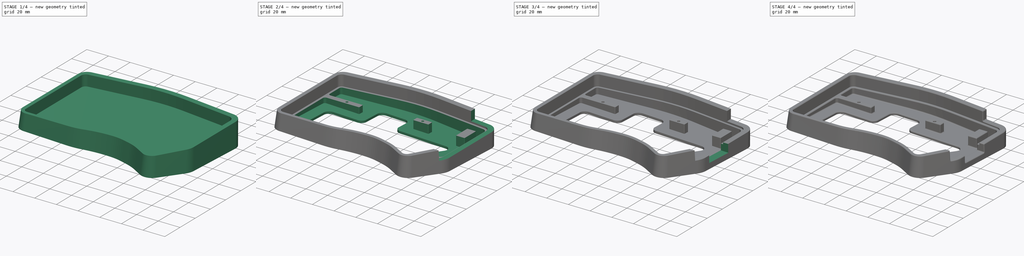
[diagram: build sequence overview — one tinted view per stage of 4, left to right]
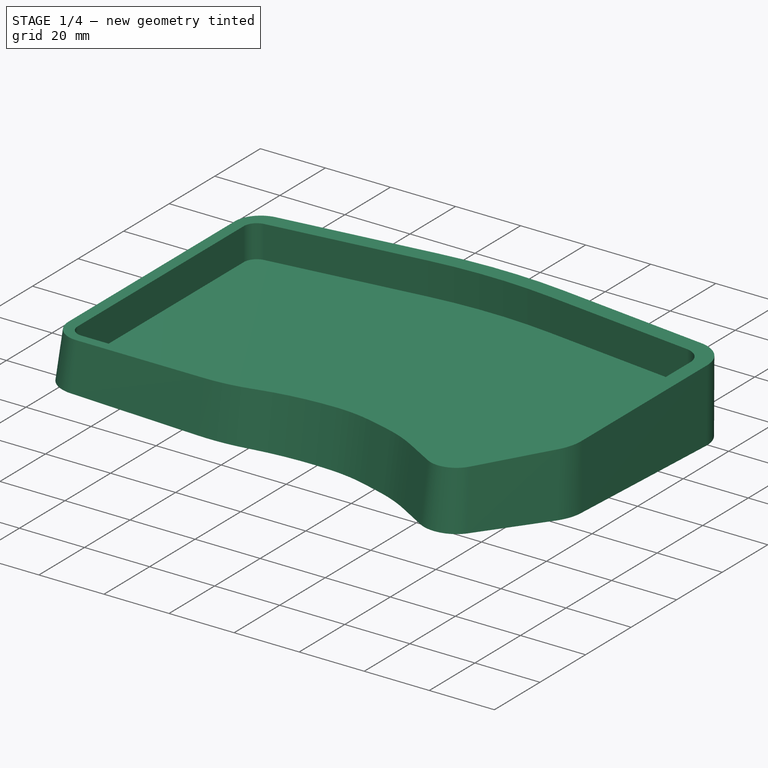
[diagram: stage 1 of 4 — iso view after this stage's code; geometry added in this stage tinted green]
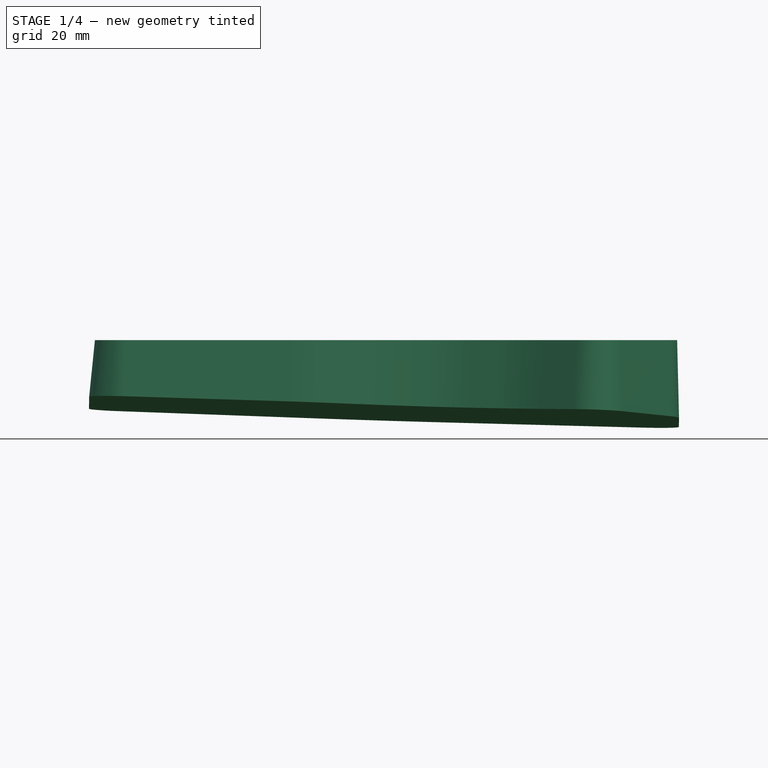
[diagram: stage 1 of 4 — front view after this stage's code; geometry added in this stage tinted green]
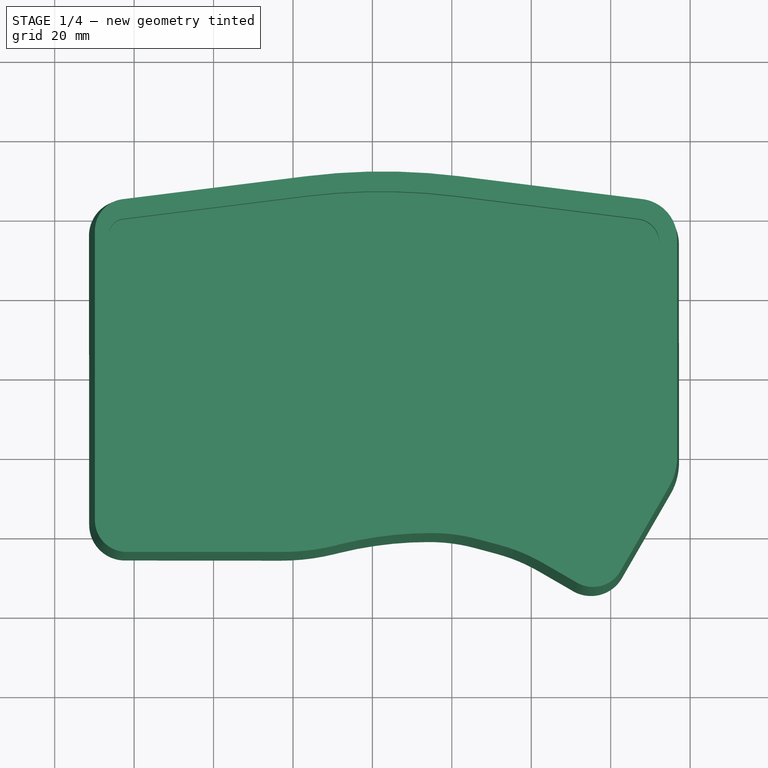
[diagram: stage 1 of 4 — top view after this stage's code; geometry added in this stage tinted green]
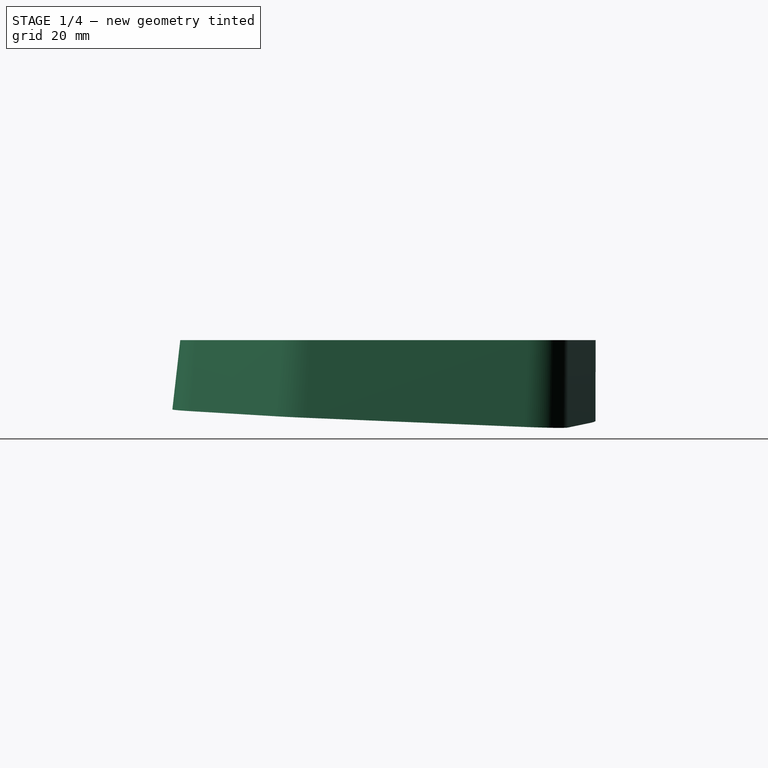
[diagram: stage 1 of 4 — right view after this stage's code; geometry added in this stage tinted green]
FCSTD DOCUMENT  (FreeCAD 0.20R)
Label: case
License: All rights reserved
LicenseURL: http://en.wikipedia.org/wiki/All_rights_reserved
objects: Sketcher::SketchObject×8, PartDesign::Pocket×5, PartDesign::Fillet×2, PartDesign::AdditiveLoft×1, PartDesign::Hole×1, PartDesign::Chamfer×1, PartDesign::Body×1
note: 29 computed .brp shape members not serialized (recipe doc carries the construction recipe); baked Part::Feature solids carry a one-line shape summary decoded from their .brp

FEATURE [Sketcher::SketchObject] Sketch
  AttachmentOffset = pos=(0,0,0) rot=(0.8,-0.6,0;-0.05236rad)
  FullyConstrained = false
  MapMode = 5
  Placement = pos=(0,0,0) rot=(0.8,-0.6,0;6.23083rad)
  Support = -> [XY_Plane]
  sketch-geometry (20):
    g0: ArcOfCircle CenterX=2.12709 CenterY=-103.909 CenterZ=0 NormalX=0 NormalY=0 NormalZ=1 AngleXU=0 Radius=156 StartAngle=1.44645 EndAngle=1.69514
    g1: LineSegment StartX=21.4755 StartY=50.8869 StartZ=0 EndX=67.5895 EndY=45.1229 EndZ=0
    g2: ArcOfCircle CenterX=66.2252 CenterY=34.2079 CenterZ=0 NormalX=0 NormalY=0 NormalZ=1 AngleXU=0 Radius=11 StartAngle=0 EndAngle=1.44645
    g3: LineSegment StartX=77.2252 StartY=-20.8112 StartZ=0 EndX=77.2252 EndY=34.2079 EndZ=0
    g4: ArcOfCircle CenterX=61.2252 CenterY=-20.8112 CenterZ=0 NormalX=0 NormalY=0 NormalZ=1 AngleXU=0 Radius=16 StartAngle=5.75959 EndAngle=6.28319
    g5: LineSegment StartX=75.0816 StartY=-28.8112 StartZ=0 EndX=62.824 EndY=-50.0419 EndZ=0
    g6: ArcOfCircle CenterX=55.0298 CenterY=-45.5419 CenterZ=0 NormalX=0 NormalY=0 NormalZ=1 AngleXU=0 Radius=9 StartAngle=4.18879 EndAngle=5.75959
    g7: LineSegment StartX=50.5298 StartY=-53.3361 StartZ=0 EndX=41.8724 EndY=-48.3378 EndZ=0
    g8: ArcOfCircle CenterX=19.8724 CenterY=-86.4429 CenterZ=0 NormalX=0 NormalY=0 NormalZ=1 AngleXU=0 Radius=44 StartAngle=1.0472 EndAngle=1.309
    g9: ArcOfCircle CenterX=14.3883 CenterY=-84.9734 CenterZ=0 NormalX=0 NormalY=0 NormalZ=1 AngleXU=0 Radius=44 StartAngle=1.309 EndAngle=1.5708
    g10: LineSegment StartX=25.7764 StartY=-42.4727 StartZ=0 EndX=31.2604 EndY=-43.9422 EndZ=0
    g11: ArcOfCircle CenterX=14.3393 CenterY=-134.973 CenterZ=0 NormalX=0 NormalY=0 NormalZ=1 AngleXU=0 Radius=94 StartAngle=1.5708 EndAngle=1.81384
    g12: ArcOfCircle CenterX=-23.1357 CenterY=10.2768 CenterZ=0 NormalX=0 NormalY=0 NormalZ=1 AngleXU=0 Radius=56 StartAngle=4.71239 EndAngle=4.95543
    g13: LineSegment StartX=-9.65903 StartY=-44.0774 StartZ=0 EndX=-8.28228 EndY=-43.736 EndZ=0
    g14: LineSegment StartX=-23.1357 StartY=-45.7232 StartZ=0 EndX=-62.3729 EndY=-45.7232 EndZ=0
    g15: ArcOfCircle CenterX=-62.3729 CenterY=-36.7232 CenterZ=0 NormalX=0 NormalY=0 NormalZ=1 AngleXU=0 Radius=9 StartAngle=3.14159 EndAngle=4.71239
    g16: LineSegment StartX=-71.3729 StartY=-36.7232 StartZ=0 EndX=-71.3729 EndY=36.1732 EndZ=0
    g17: ArcOfCircle CenterX=-62.3729 CenterY=36.1732 CenterZ=0 NormalX=0 NormalY=0 NormalZ=1 AngleXU=0 Radius=9 StartAngle=1.69514 EndAngle=3.14159
    g18: LineSegment StartX=-63.4892 StartY=45.1037 StartZ=0 EndX=-17.2213 EndY=50.8869 EndZ=0
    g19: LineSegment StartX=14.3393 StartY=-40.9734 StartZ=0 EndX=14.3883 EndY=-40.9734 EndZ=0
  constraints (20):
    c: Coincident(g15,g16)
    c: Coincident(g16,g17)
    c: Coincident(g17,g18)
    c: Coincident(g14,g15)
    c: Coincident(g12,g14)
    c: Coincident(g0,g18)
    c: Coincident(g12,g13)
    c: Coincident(g11,g13)
    c: Coincident(g11,g19)
    c: Coincident(g9,g19)
    c: Coincident(g0,g1)
    c: Coincident(g9,g10)
    c: Coincident(g8,g10)
    c: Coincident(g7,g8)
    c: Coincident(g6,g7)
    c: Coincident(g5,g6)
    c: Coincident(g1,g2)
    c: Coincident(g4,g5)
    c: Coincident(g3,g4)
    c: Coincident(g2,g3)
FEATURE [Sketcher::SketchObject] Sketch001
  AttachmentOffset = pos=(0.5,1,18) rot=(0,0,1;0rad)
  FullyConstrained = false
  MapMode = 5
  Placement = pos=(0.5,1,18) rot=(0,0,1;0rad)
  Support = -> [XY_Plane]
  sketch-geometry (20):
    g0: LineSegment StartX=21.3515 StartY=49.8946 StartZ=0 EndX=67.4654 EndY=44.1307 EndZ=0
    g1: ArcOfCircle CenterX=66.2252 CenterY=34.2079 CenterZ=0 NormalX=0 NormalY=0 NormalZ=1 AngleXU=0 Radius=10 StartAngle=0 EndAngle=1.44645
    g2: LineSegment StartX=76.2252 StartY=-20.8112 StartZ=0 EndX=76.2252 EndY=34.2079 EndZ=0
    g3: ArcOfCircle CenterX=61.2252 CenterY=-20.8112 CenterZ=0 NormalX=0 NormalY=0 NormalZ=1 AngleXU=0 Radius=15 StartAngle=5.75959 EndAngle=6.28319
    g4: LineSegment StartX=74.2155 StartY=-28.3112 StartZ=0 EndX=61.958 EndY=-49.5419 EndZ=0
    g5: ArcOfCircle CenterX=55.0298 CenterY=-45.5419 CenterZ=0 NormalX=0 NormalY=0 NormalZ=1 AngleXU=0 Radius=8 StartAngle=4.18879 EndAngle=5.75959
    g6: LineSegment StartX=51.0298 StartY=-52.4701 StartZ=0 EndX=42.3724 EndY=-47.4718 EndZ=0
    g7: ArcOfCircle CenterX=19.8724 CenterY=-86.4429 CenterZ=0 NormalX=0 NormalY=0 NormalZ=1 AngleXU=0 Radius=45 StartAngle=1.0472 EndAngle=1.309
    g8: LineSegment StartX=26.0352 StartY=-41.5068 StartZ=0 EndX=31.5193 EndY=-42.9762 EndZ=0
    g9: ArcOfCircle CenterX=14.3883 CenterY=-84.9734 CenterZ=0 NormalX=0 NormalY=0 NormalZ=1 AngleXU=0 Radius=45 StartAngle=1.309 EndAngle=1.5708
    g10: ArcOfCircle CenterX=14.3393 CenterY=-134.973 CenterZ=0 NormalX=0 NormalY=0 NormalZ=1 AngleXU=0 Radius=95 StartAngle=1.5708 EndAngle=1.81384
    g11: ArcOfCircle CenterX=-23.1357 CenterY=10.2768 CenterZ=0 NormalX=0 NormalY=0 NormalZ=1 AngleXU=0 Radius=55 StartAngle=4.71239 EndAngle=4.95543
    g12: LineSegment StartX=-9.89968 StartY=-43.1068 StartZ=0 EndX=-8.52294 EndY=-42.7654 EndZ=0
    g13: LineSegment StartX=-23.1357 StartY=-44.7232 StartZ=0 EndX=-62.3729 EndY=-44.7232 EndZ=0
    g14: ArcOfCircle CenterX=-62.3729 CenterY=-36.7232 CenterZ=0 NormalX=0 NormalY=0 NormalZ=1 AngleXU=0 Radius=8 StartAngle=3.14159 EndAngle=4.71239
    g15: LineSegment StartX=-70.3729 StartY=-36.7232 StartZ=0 EndX=-70.3729 EndY=36.1732 EndZ=0
    g16: ArcOfCircle CenterX=-62.3729 CenterY=36.1732 CenterZ=0 NormalX=0 NormalY=0 NormalZ=1 AngleXU=0 Radius=8 StartAngle=1.69514 EndAngle=3.14159
    g17: LineSegment StartX=-63.3651 StartY=44.1114 StartZ=0 EndX=-17.0973 EndY=49.8946 EndZ=0
    g18: ArcOfCircle CenterX=2.12709 CenterY=-103.909 CenterZ=0 NormalX=0 NormalY=0 NormalZ=1 AngleXU=0 Radius=155 StartAngle=1.44645 EndAngle=1.69514
    g19: LineSegment StartX=14.3393 StartY=-39.9734 StartZ=0 EndX=14.3883 EndY=-39.9734 EndZ=0
  constraints (20):
    c: Coincident(g14,g15)
    c: Coincident(g15,g16)
    c: Coincident(g16,g17)
    c: Coincident(g13,g14)
    c: Coincident(g11,g13)
    c: Coincident(g17,g18)
    c: Coincident(g11,g12)
    c: Coincident(g10,g12)
    c: Coincident(g10,g19)
    c: Coincident(g9,g19)
    c: Coincident(g0,g18)
    c: Coincident(g8,g9)
    c: Coincident(g7,g8)
    c: Coincident(g6,g7)
    c: Coincident(g5,g6)
    c: Coincident(g4,g5)
    c: Coincident(g0,g1)
    c: Coincident(g3,g4)
    c: Coincident(g2,g3)
    c: Coincident(g1,g2)
FEATURE [PartDesign::AdditiveLoft] AdditiveLoft
  Closed = false
  Profile = -> Sketch
  Ruled = false
  Sections = -> [Sketch001]
FEATURE [Sketcher::SketchObject] Sketch002
  FullyConstrained = false
  MapMode = 5
  Placement = pos=(0,0,18) rot=(0,0,1;0rad)
  Support = -> [AdditiveLoft]
  sketch-geometry (20):
    g0: ArcOfCircle CenterX=2.12709 CenterY=-103.909 CenterZ=0 NormalX=0 NormalY=0 NormalZ=1 AngleXU=0 Radius=151 StartAngle=1.44645 EndAngle=1.69514
    g1: LineSegment StartX=20.8554 StartY=45.9255 StartZ=0 EndX=66.9693 EndY=40.1615 EndZ=0
    g2: ArcOfCircle CenterX=66.2252 CenterY=34.2079 CenterZ=0 NormalX=0 NormalY=0 NormalZ=1 AngleXU=0 Radius=6 StartAngle=0 EndAngle=1.44645
    g3: LineSegment StartX=72.2252 StartY=-20.8112 StartZ=0 EndX=72.2252 EndY=34.2079 EndZ=0
    g4: ArcOfCircle CenterX=61.2252 CenterY=-20.8112 CenterZ=0 NormalX=0 NormalY=0 NormalZ=1 AngleXU=0 Radius=11 StartAngle=5.75959 EndAngle=6.28319
    g5: LineSegment StartX=70.7514 StartY=-26.3112 StartZ=0 EndX=58.4939 EndY=-47.5419 EndZ=0
    g6: ArcOfCircle CenterX=55.0298 CenterY=-45.5419 CenterZ=0 NormalX=0 NormalY=0 NormalZ=1 AngleXU=0 Radius=4 StartAngle=4.18879 EndAngle=5.75959
    g7: LineSegment StartX=53.0298 StartY=-49.006 StartZ=0 EndX=44.3724 EndY=-44.0077 EndZ=0
    g8: ArcOfCircle CenterX=19.8724 CenterY=-86.4429 CenterZ=0 NormalX=0 NormalY=0 NormalZ=1 AngleXU=0 Radius=49 StartAngle=1.0472 EndAngle=1.309
    g9: LineSegment StartX=27.0705 StartY=-37.6431 StartZ=0 EndX=32.5545 EndY=-39.1125 EndZ=0
    g10: ArcOfCircle CenterX=14.3883 CenterY=-84.9734 CenterZ=0 NormalX=0 NormalY=0 NormalZ=1 AngleXU=0 Radius=49 StartAngle=1.309 EndAngle=1.5708
    g11: ArcOfCircle CenterX=14.3393 CenterY=-134.973 CenterZ=0 NormalX=0 NormalY=0 NormalZ=1 AngleXU=0 Radius=99 StartAngle=1.5708 EndAngle=1.81384
    g12: ArcOfCircle CenterX=-23.1357 CenterY=10.2768 CenterZ=0 NormalX=0 NormalY=0 NormalZ=1 AngleXU=0 Radius=51 StartAngle=4.71239 EndAngle=4.95543
    g13: LineSegment StartX=-10.8623 StartY=-39.2243 StartZ=0 EndX=-9.48556 EndY=-38.883 EndZ=0
    g14: LineSegment StartX=-23.1357 StartY=-40.7232 StartZ=0 EndX=-62.3729 EndY=-40.7232 EndZ=0
    g15: ArcOfCircle CenterX=-62.3729 CenterY=-36.7232 CenterZ=0 NormalX=0 NormalY=0 NormalZ=1 AngleXU=0 Radius=4 StartAngle=3.14159 EndAngle=4.71239
    g16: LineSegment StartX=-66.3729 StartY=-36.7232 StartZ=0 EndX=-66.3729 EndY=36.1732 EndZ=0
    g17: ArcOfCircle CenterX=-62.3729 CenterY=36.1732 CenterZ=0 NormalX=0 NormalY=0 NormalZ=1 AngleXU=0 Radius=4 StartAngle=1.69514 EndAngle=3.14159
    g18: LineSegment StartX=-62.869 StartY=40.1423 StartZ=0 EndX=-16.6012 EndY=45.9255 EndZ=0
    g19: LineSegment StartX=14.3393 StartY=-35.9734 StartZ=0 EndX=14.3883 EndY=-35.9734 EndZ=0
  constraints (20):
    c: Coincident(g15,g16)
    c: Coincident(g16,g17)
    c: Coincident(g17,g18)
    c: Coincident(g14,g15)
    c: Coincident(g12,g14)
    c: Coincident(g0,g18)
    c: Coincident(g12,g13)
    c: Coincident(g11,g13)
    c: Coincident(g11,g19)
    c: Coincident(g10,g19)
    c: Coincident(g0,g1)
    c: Coincident(g9,g10)
    c: Coincident(g8,g9)
    c: Coincident(g7,g8)
    c: Coincident(g6,g7)
    c: Coincident(g5,g6)
    c: Coincident(g1,g2)
    c: Coincident(g4,g5)
    c: Coincident(g3,g4)
    c: Coincident(g2,g3)
FEATURE [PartDesign::Pocket] Pocket
  BaseFeature = -> AdditiveLoft
  Direction = (0,0,-1)
  Length = 10
  Length2 = 5
  Profile = -> Sketch002
  ReferenceAxis = -> Sketch002 [N_Axis]
  Type = 0
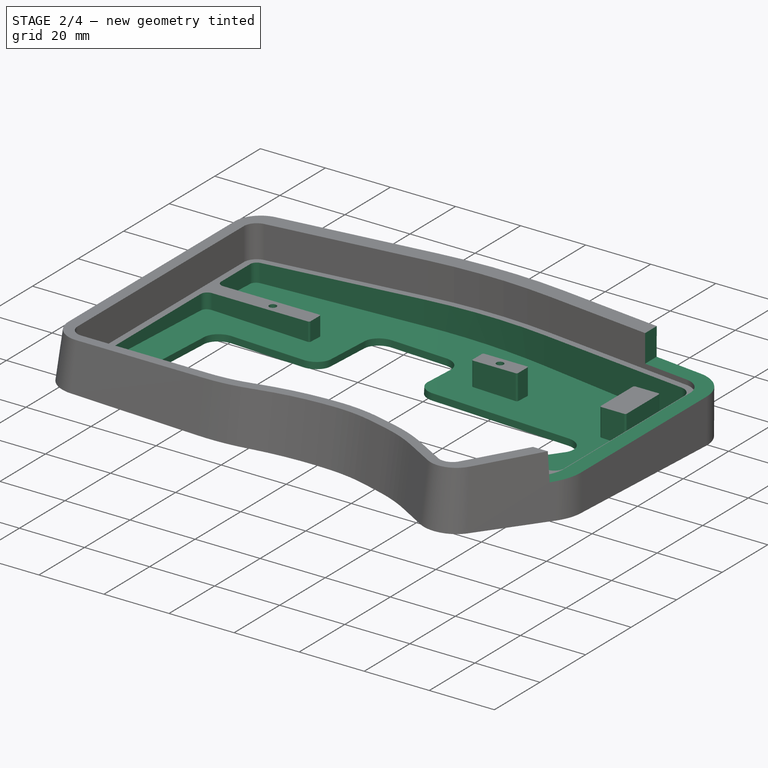
[diagram: stage 2 of 4 — iso view after this stage's code; geometry added in this stage tinted green]
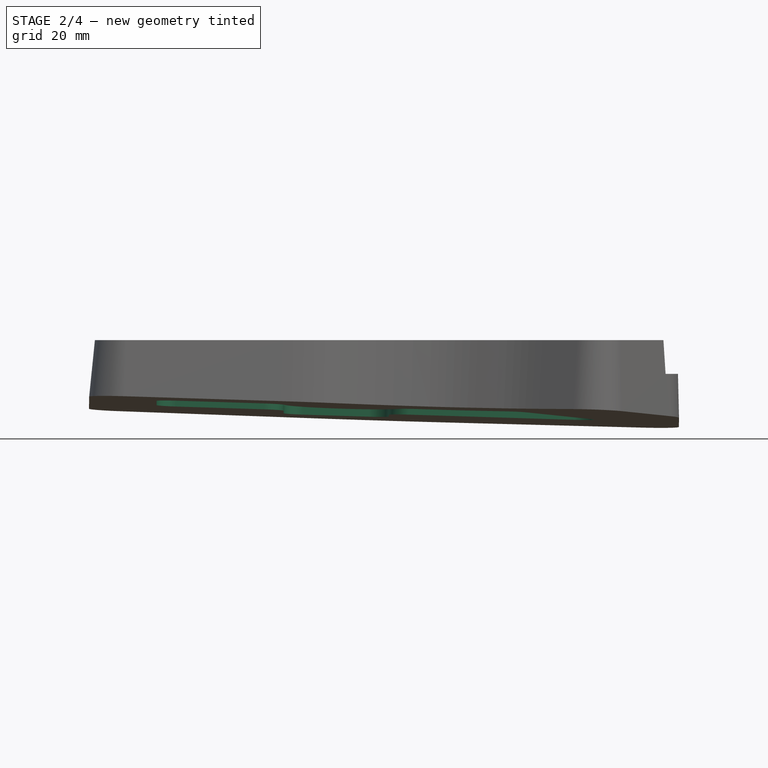
[diagram: stage 2 of 4 — front view after this stage's code; geometry added in this stage tinted green]
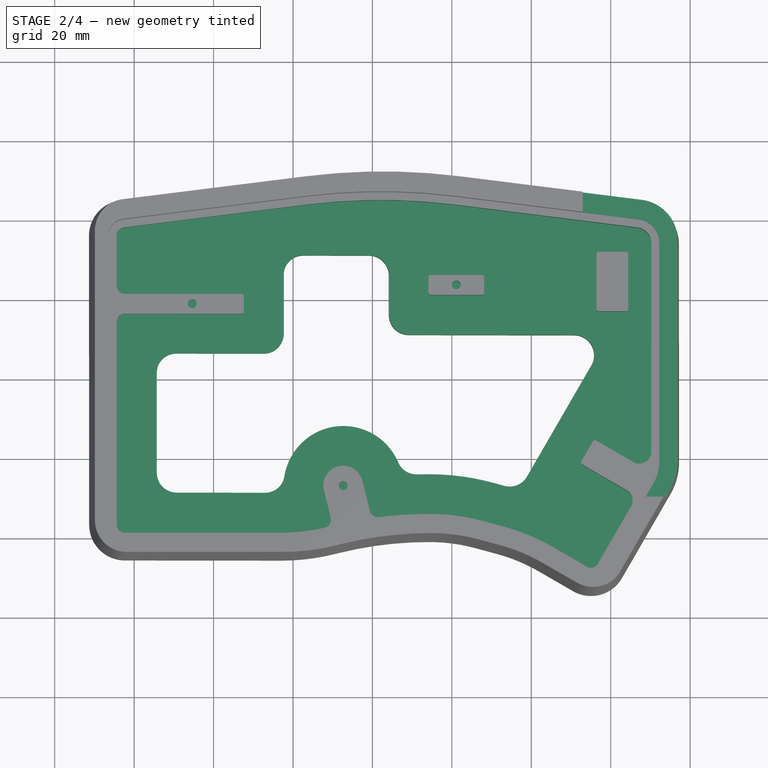
[diagram: stage 2 of 4 — top view after this stage's code; geometry added in this stage tinted green]
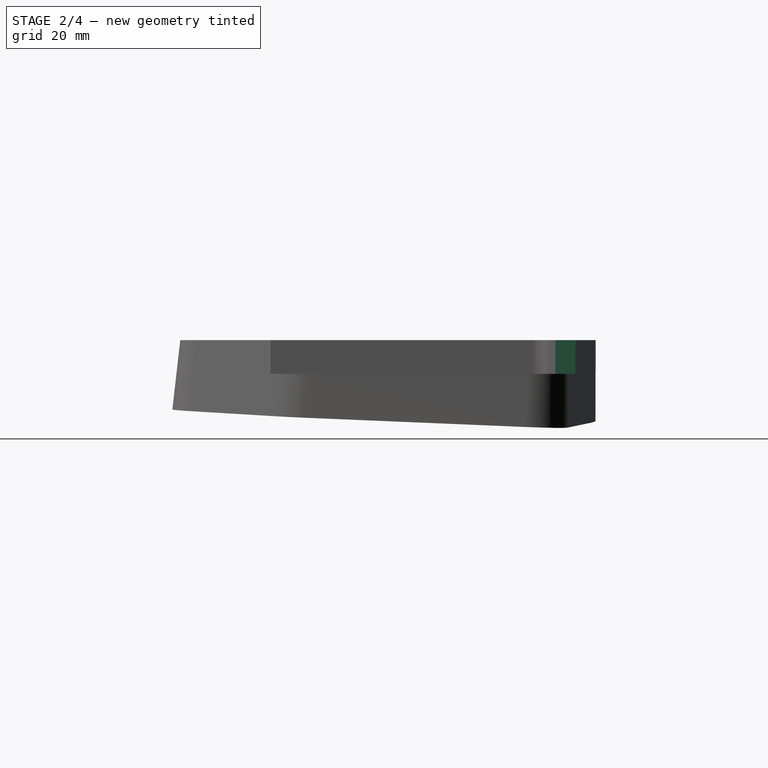
[diagram: stage 2 of 4 — right view after this stage's code; geometry added in this stage tinted green]
FEATURE [Sketcher::SketchObject] Sketch003
  FullyConstrained = false
  MapMode = 5
  Placement = pos=(0,0,8) rot=(0,0,1;0rad)
  Support = -> [Pocket]
  sketch-geometry (57):
    g0: Circle CenterX=-45.3729 CenterY=18.9393 CenterZ=0 NormalX=0 NormalY=0 NormalZ=-1 AngleXU=0 Radius=1.1
    g1: Circle CenterX=-7.37291 CenterY=-26.8483 CenterZ=0 NormalX=0 NormalY=0 NormalZ=-1 AngleXU=0 Radius=1.1
    g2: LineSegment StartX=14.6271 StartY=26.1885 StartZ=0 EndX=27.6271 EndY=26.1885 EndZ=0
    g3: ArcOfCircle CenterX=27.6271 CenterY=25.6885 CenterZ=0 NormalX=0 NormalY=0 NormalZ=1 AngleXU=-3.14159 Radius=0.5 StartAngle=3.14159 EndAngle=4.71239
    g4: LineSegment StartX=28.1271 StartY=25.6885 StartZ=0 EndX=28.1271 EndY=21.6895 EndZ=0
    g5: ArcOfCircle CenterX=27.6271 CenterY=21.6895 CenterZ=0 NormalX=0 NormalY=0 NormalZ=1 AngleXU=-3.14159 Radius=0.5 StartAngle=1.5708 EndAngle=3.14159
    g6: LineSegment StartX=27.6271 StartY=21.1895 StartZ=0 EndX=14.6271 EndY=21.1895 EndZ=0
    g7: ArcOfCircle CenterX=14.6271 CenterY=21.6895 CenterZ=0 NormalX=0 NormalY=0 NormalZ=1 AngleXU=-3.14159 Radius=0.5 StartAngle=0 EndAngle=1.5708
    g8: LineSegment StartX=14.1271 StartY=21.6895 StartZ=0 EndX=14.1271 EndY=25.6885 EndZ=0
    g9: ArcOfCircle CenterX=14.6271 CenterY=25.6885 CenterZ=0 NormalX=0 NormalY=0 NormalZ=1 AngleXU=-3.14159 Radius=0.5 StartAngle=4.71239 EndAngle=6.28319
    g10: Circle CenterX=21.1271 CenterY=23.689 CenterZ=0 NormalX=0 NormalY=0 NormalZ=-1 AngleXU=0 Radius=1.1
    g11: ArcOfCircle CenterX=63.9261 CenterY=17.5489 CenterZ=0 NormalX=0 NormalY=0 NormalZ=1 AngleXU=0 Radius=0.5 StartAngle=4.71239 EndAngle=6.28319
    g12: LineSegment StartX=63.9261 StartY=17.0489 StartZ=0 EndX=56.9261 EndY=17.0489 EndZ=0
    g13: ArcOfCircle CenterX=56.9261 CenterY=17.5489 CenterZ=0 NormalX=0 NormalY=0 NormalZ=1 AngleXU=0 Radius=0.5 StartAngle=3.14159 EndAngle=4.71239
    g14: LineSegment StartX=56.4261 StartY=31.5489 StartZ=0 EndX=56.4261 EndY=17.5489 EndZ=0
    g15: ArcOfCircle CenterX=56.9261 CenterY=31.5489 CenterZ=0 NormalX=0 NormalY=0 NormalZ=1 AngleXU=0 Radius=0.5 StartAngle=1.5708 EndAngle=3.14159
    g16: LineSegment StartX=63.9261 StartY=32.0489 StartZ=0 EndX=56.9261 EndY=32.0489 EndZ=0
    g17: LineSegment StartX=64.4261 StartY=31.5489 StartZ=0 EndX=64.4261 EndY=17.5489 EndZ=0
    g18: ArcOfCircle CenterX=63.9261 CenterY=31.5489 CenterZ=0 NormalX=0 NormalY=0 NormalZ=1 AngleXU=0 Radius=0.5 StartAngle=0 EndAngle=1.5708
    g19: ArcOfCircle CenterX=52.9937 CenterY=-21.0684 CenterZ=0 NormalX=0 NormalY=0 NormalZ=1 AngleXU=0 Radius=0.5 StartAngle=2.61799 EndAngle=4.18879
    g20: LineSegment StartX=52.5607 StartY=-20.8184 StartZ=0 EndX=55.5607 EndY=-15.6223 EndZ=0
    g21: ArcOfCircle CenterX=55.9937 CenterY=-15.8723 CenterZ=0 NormalX=0 NormalY=0 NormalZ=1 AngleXU=0 Radius=0.5 StartAngle=1.0472 EndAngle=2.61799
    g22: ArcOfCircle CenterX=55.0298 CenterY=-45.5419 CenterZ=0 NormalX=0 NormalY=0 NormalZ=1 AngleXU=0 Radius=2 StartAngle=4.18879 EndAngle=5.75959
    g23: LineSegment StartX=54.0298 StartY=-47.274 StartZ=0 EndX=45.3724 EndY=-42.2756 EndZ=0
    g24: ArcOfCircle CenterX=19.8724 CenterY=-86.4429 CenterZ=0 NormalX=0 NormalY=0 NormalZ=1 AngleXU=0 Radius=51 StartAngle=1.0472 EndAngle=1.309
    g25: LineSegment StartX=27.5881 StartY=-35.7112 StartZ=0 EndX=33.0722 EndY=-37.1807 EndZ=0
    g26: ArcOfCircle CenterX=14.3883 CenterY=-84.9734 CenterZ=0 NormalX=0 NormalY=0 NormalZ=1 AngleXU=0 Radius=51 StartAngle=1.309 EndAngle=1.5708
    g27: LineSegment StartX=-23.1357 StartY=-38.7232 StartZ=0 EndX=-62.3729 EndY=-38.7232 EndZ=0
    g28: ArcOfCircle CenterX=-62.3729 CenterY=-36.7232 CenterZ=0 NormalX=0 NormalY=0 NormalZ=1 AngleXU=0 Radius=2 StartAngle=3.14159 EndAngle=4.71239
    g29: ArcOfCircle CenterX=-62.3729 CenterY=36.1732 CenterZ=0 NormalX=0 NormalY=0 NormalZ=1 AngleXU=0 Radius=2 StartAngle=1.69514 EndAngle=3.14159
    g30: LineSegment StartX=-62.621 StartY=38.1577 StartZ=0 EndX=-16.3531 EndY=43.9409 EndZ=0
    g31: ArcOfCircle CenterX=2.12709 CenterY=-103.909 CenterZ=0 NormalX=0 NormalY=0 NormalZ=1 AngleXU=0 Radius=149 StartAngle=1.44645 EndAngle=1.69514
    g32: LineSegment StartX=20.6073 StartY=43.9409 StartZ=0 EndX=66.7213 EndY=38.177 EndZ=0
    g33: ArcOfCircle CenterX=66.2252 CenterY=34.2079 CenterZ=0 NormalX=0 NormalY=0 NormalZ=1 AngleXU=0 Radius=4 StartAngle=0 EndAngle=1.44645
    g34: LineSegment StartX=56.2437 StartY=-15.4393 StartZ=0 EndX=65.7252 EndY=-20.9134 EndZ=0
    g35: LineSegment StartX=70.2252 StartY=-18.3153 StartZ=0 EndX=70.2252 EndY=34.2079 EndZ=0
    g36: ArcOfCircle CenterX=67.2252 CenterY=-18.3153 CenterZ=0 NormalX=0 NormalY=0 NormalZ=1 AngleXU=0 Radius=3 StartAngle=4.18879 EndAngle=6.28319
    g37: LineSegment StartX=52.7437 StartY=-21.5015 StartZ=0 EndX=64.0021 EndY=-28.0015 EndZ=0
    g38: LineSegment StartX=65.1002 StartY=-32.0995 StartZ=0 EndX=56.7618 EndY=-46.5419 EndZ=0
    g39: ArcOfCircle CenterX=62.5021 CenterY=-30.5995 CenterZ=0 NormalX=0 NormalY=0 NormalZ=1 AngleXU=0 Radius=3 StartAngle=5.75959 EndAngle=7.33038
    g40: ArcOfCircle CenterX=-32.8729 CenterY=20.9388 CenterZ=0 NormalX=0 NormalY=0 NormalZ=1 AngleXU=0 Radius=0.5 StartAngle=0 EndAngle=1.5708
    g41: LineSegment StartX=-32.3729 StartY=16.9398 StartZ=0 EndX=-32.3729 EndY=20.9388 EndZ=0
    g42: ArcOfCircle CenterX=-32.8729 CenterY=16.9398 CenterZ=0 NormalX=0 NormalY=0 NormalZ=1 AngleXU=0 Radius=0.5 StartAngle=4.71239 EndAngle=6.28319
    g43: LineSegment StartX=-62.3729 StartY=16.4398 StartZ=0 EndX=-32.8729 EndY=16.4398 EndZ=0
    g44: LineSegment StartX=-64.3729 StartY=-36.7232 StartZ=0 EndX=-64.3729 EndY=14.4398 EndZ=0
    g45: ArcOfCircle CenterX=-62.3729 CenterY=14.4398 CenterZ=0 NormalX=0 NormalY=0 NormalZ=1 AngleXU=0 Radius=2 StartAngle=1.5708 EndAngle=3.14159
    g46: LineSegment StartX=-32.8729 StartY=21.4388 StartZ=0 EndX=-62.3729 EndY=21.4388 EndZ=0
    g47: LineSegment StartX=-64.3729 StartY=23.4388 StartZ=0 EndX=-64.3729 EndY=36.1732 EndZ=0
    g48: ArcOfCircle CenterX=-62.3729 CenterY=23.4388 CenterZ=0 NormalX=0 NormalY=0 NormalZ=1 AngleXU=0 Radius=2 StartAngle=3.14159 EndAngle=4.71239
    g49: ArcOfCircle CenterX=14.3393 CenterY=-134.973 CenterZ=0 NormalX=0 NormalY=0 NormalZ=1 AngleXU=0 Radius=101 StartAngle=1.5708 EndAngle=1.69759
    g50: LineSegment StartX=-0.626444 StartY=-33.2816 StartZ=0 EndX=-2.51986 EndY=-25.645 EndZ=0
    g51: ArcOfCircle CenterX=1.31478 CenterY=-32.8003 CenterZ=0 NormalX=0 NormalY=0 NormalZ=1 AngleXU=0 Radius=2 StartAngle=3.38463 EndAngle=4.83918
    g52: ArcOfCircle CenterX=-23.1357 CenterY=10.2768 CenterZ=0 NormalX=0 NormalY=0 NormalZ=1 AngleXU=0 Radius=49 StartAngle=4.71239 EndAngle=4.94192
    g53: LineSegment StartX=-10.5009 StartY=-35.0092 StartZ=0 EndX=-12.226 EndY=-28.0516 EndZ=0
    g54: ArcOfCircle CenterX=-12.4421 CenterY=-35.4905 CenterZ=0 NormalX=0 NormalY=0 NormalZ=1 AngleXU=0 Radius=2 StartAngle=4.94192 EndAngle=6.52623
    g55: ArcOfCircle CenterX=-7.37291 CenterY=-26.8483 CenterZ=0 NormalX=0 NormalY=0 NormalZ=1 AngleXU=0 Radius=5 StartAngle=0.243041 EndAngle=3.38463
    g56: LineSegment StartX=14.3393 StartY=-33.9734 StartZ=0 EndX=14.3883 EndY=-33.9734 EndZ=0
  constraints (54):
    c: Coincident(g28,g44)
    c: Coincident(g44,g45)
    c: Coincident(g47,g48)
    c: Coincident(g29,g47)
    c: Coincident(g29,g30)
    c: Coincident(g27,g28)
    c: Coincident(g43,g45)
    c: Coincident(g46,g48)
    c: Coincident(g42,g43)
    c: Coincident(g40,g46)
    c: Coincident(g41,g42)
    c: Coincident(g40,g41)
    c: Coincident(g27,g52)
    c: Coincident(g30,g31)
    c: Coincident(g53,g55)
    c: Coincident(g52,g54)
    c: Coincident(g53,g54)
    c: Coincident(g50,g55)
    c: Coincident(g50,g51)
    c: Coincident(g49,g51)
    c: Coincident(g7,g8)
    c: Coincident(g8,g9)
    c: Coincident(g49,g56)
    c: Coincident(g26,g56)
    c: Coincident(g6,g7)
    c: Coincident(g2,g9)
    c: Coincident(g31,g32)
    c: Coincident(g25,g26)
    c: Coincident(g5,g6)
    c: Coincident(g2,g3)
    c: Coincident(g4,g5)
    c: Coincident(g3,g4)
    c: Coincident(g24,g25)
    c: Coincident(g23,g24)
    c: Coincident(g19,g20)
    c: Coincident(g19,g37)
    c: Coincident(g22,g23)
    c: Coincident(g20,g21)
    c: Coincident(g21,g34)
    c: Coincident(g13,g14)
    c: Coincident(g14,g15)
    c: Coincident(g22,g38)
    c: Coincident(g12,g13)
    c: Coincident(g15,g16)
    c: Coincident(g11,g12)
    c: Coincident(g16,g18)
    c: Coincident(g37,g39)
    c: Coincident(g11,g17)
    c: Coincident(g17,g18)
    c: Coincident(g38,g39)
    c: Coincident(g34,g36)
    c: Coincident(g32,g33)
    c: Coincident(g35,g36)
    c: Coincident(g33,g35)
FEATURE [PartDesign::Pocket] Pocket001
  BaseFeature = -> Pocket
  Direction = (0,0,-1)
  Length = 0
  Length2 = 5
  Offset = -2
  Profile = -> Sketch003
  ReferenceAxis = -> Sketch003 [N_Axis]
  Type = 3
  UpToFace = -> Pocket [Face1]
FEATURE [Sketcher::SketchObject] Sketch004
  FullyConstrained = false
  MapMode = 5
  Placement = pos=(0.0627171,0.0836228,1.99452) rot=(-0.800134,0.599689,-0.012566;0.052364rad)
  Support = -> [Pocket001]
  sketch-geometry (22):
    g0: ArcOfCircle CenterX=14.3883 CenterY=-84.9734 CenterZ=0 NormalX=0 NormalY=0 NormalZ=1 AngleXU=0 Radius=61 StartAngle=1.309 EndAngle=1.5708
    g1: ArcOfCircle CenterX=-49.3729 CenterY=1.43977 CenterZ=0 NormalX=0 NormalY=0 NormalZ=1 AngleXU=0 Radius=5 StartAngle=1.5708 EndAngle=3.14159
    g2: LineSegment StartX=-54.3729 StartY=-23.7232 StartZ=0 EndX=-54.3729 EndY=1.43977 EndZ=0
    g3: ArcOfCircle CenterX=-49.3729 CenterY=-23.7232 CenterZ=0 NormalX=0 NormalY=0 NormalZ=1 AngleXU=0 Radius=5 StartAngle=3.14159 EndAngle=4.71239
    g4: LineSegment StartX=-27.1272 StartY=-28.7232 StartZ=0 EndX=-49.3729 EndY=-28.7232 EndZ=0
    g5: ArcOfCircle CenterX=-27.1272 CenterY=-23.7232 CenterZ=0 NormalX=0 NormalY=0 NormalZ=1 AngleXU=0 Radius=5 StartAngle=4.71239 EndAngle=6.12629
    g6: ArcOfCircle CenterX=-7.37291 CenterY=-26.8483 CenterZ=0 NormalX=0 NormalY=0 NormalZ=1 AngleXU=0 Radius=15 StartAngle=0.402137 EndAngle=2.98469
    g7: ArcOfCircle CenterX=11.0316 CenterY=-19.0206 CenterZ=0 NormalX=0 NormalY=0 NormalZ=1 AngleXU=0 Radius=5 StartAngle=3.54373 EndAngle=4.74091
    g8: LineSegment StartX=11.1742 StartY=-24.0186 StartZ=0 EndX=14.3883 EndY=-23.9734 EndZ=0
    g9: LineSegment StartX=30.1763 StartY=-26.052 StartZ=0 EndX=33.2391 EndY=-26.8727 EndZ=0
    g10: ArcOfCircle CenterX=34.5332 CenterY=-22.043 CenterZ=0 NormalX=0 NormalY=0 NormalZ=1 AngleXU=0 Radius=5 StartAngle=4.45059 EndAngle=5.75959
    g11: LineSegment StartX=38.8633 StartY=-24.543 StartZ=0 EndX=55.1634 EndY=3.68952 EndZ=0
    g12: ArcOfCircle CenterX=50.8333 CenterY=6.18952 CenterZ=0 NormalX=0 NormalY=0 NormalZ=1 AngleXU=0 Radius=5 StartAngle=5.75959 EndAngle=7.85398
    g13: LineSegment StartX=50.8333 StartY=11.1895 StartZ=0 EndX=9.12709 EndY=11.1895 EndZ=0
    g14: ArcOfCircle CenterX=9.12709 CenterY=16.1895 CenterZ=0 NormalX=0 NormalY=0 NormalZ=1 AngleXU=0 Radius=5 StartAngle=3.14159 EndAngle=4.71239
    g15: LineSegment StartX=4.12709 StartY=16.1895 StartZ=0 EndX=4.12709 EndY=26.1895 EndZ=0
    g16: ArcOfCircle CenterX=-0.87291 CenterY=26.1895 CenterZ=0 NormalX=0 NormalY=0 NormalZ=1 AngleXU=0 Radius=5 StartAngle=0 EndAngle=1.5708
    g17: LineSegment StartX=-0.87291 StartY=31.1895 StartZ=0 EndX=-17.3729 EndY=31.1895 EndZ=0
    g18: ArcOfCircle CenterX=-17.3729 CenterY=26.1895 CenterZ=0 NormalX=0 NormalY=0 NormalZ=1 AngleXU=0 Radius=5 StartAngle=1.5708 EndAngle=3.14159
    g19: LineSegment StartX=-22.3729 StartY=11.4398 StartZ=0 EndX=-22.3729 EndY=26.1895 EndZ=0
    g20: LineSegment StartX=-49.3729 StartY=6.43977 StartZ=0 EndX=-27.3729 EndY=6.43977 EndZ=0
    g21: ArcOfCircle CenterX=-27.3729 CenterY=11.4398 CenterZ=0 NormalX=0 NormalY=0 NormalZ=1 AngleXU=0 Radius=5 StartAngle=4.71239 EndAngle=6.28319
  constraints (22):
    c: Coincident(g2,g3)
    c: Coincident(g1,g2)
    c: Coincident(g3,g4)
    c: Coincident(g1,g20)
    c: Coincident(g20,g21)
    c: Coincident(g4,g5)
    c: Coincident(g19,g21)
    c: Coincident(g18,g19)
    c: Coincident(g5,g6)
    c: Coincident(g17,g18)
    c: Coincident(g16,g17)
    c: Coincident(g14,g15)
    c: Coincident(g15,g16)
    c: Coincident(g6,g7)
    c: Coincident(g13,g14)
    c: Coincident(g7,g8)
    c: Coincident(g0,g8)
    c: Coincident(g0,g9)
    c: Coincident(g9,g10)
    c: Coincident(g10,g11)
    c: Coincident(g12,g13)
    c: Coincident(g11,g12)
FEATURE [PartDesign::Pocket] Pocket002
  BaseFeature = -> Pocket001
  Direction = (-0.0314016,-0.0418688,-0.99863)
  Length = 5
  Length2 = 5
  Profile = -> Sketch004
  ReferenceAxis = -> Sketch004 [N_Axis]
  Type = 0
FEATURE [Sketcher::SketchObject] Sketch005
  ExternalGeometry = -> [AdditiveLoft]
  FullyConstrained = true
  MapMode = 5
  Placement = pos=(0,0,18) rot=(0,0,1;0rad)
  Support = -> [AdditiveLoft]
  sketch-geometry (4):
    g0: LineSegment StartX=82.9654 StartY=65.1307 StartZ=0 EndX=52.9654 EndY=65.1307 EndZ=0
    g1: LineSegment StartX=52.9654 StartY=65.1307 StartZ=0 EndX=52.9654 EndY=-29.8112 EndZ=0
    g2: LineSegment StartX=52.9654 StartY=-29.8112 StartZ=0 EndX=82.9654 EndY=-29.8112 EndZ=0
    g3: LineSegment StartX=82.9654 StartY=-29.8112 StartZ=0 EndX=82.9654 EndY=65.1307 EndZ=0
  constraints (12):
    c: Coincident(g0,g1)
    c: Coincident(g1,g2)
    c: Coincident(g2,g3)
    c: Coincident(g3,g0)
    c: Horizontal(g0)
    c: Horizontal(g2)
    c: Vertical(g1)
    c: Vertical(g3)
    c: DistanceX(g1,g-3) = 15
    c: Distance(g0) = 30
    c: DistanceY(g2,g-4) = 10
    c: DistanceY(g-3,g0) = 20
FEATURE [PartDesign::Pocket] Pocket003
  BaseFeature = -> Pocket002
  Direction = (0,0,-1)
  Length = 0
  Length2 = 5
  Offset = -1.5
  Profile = -> Sketch005
  ReferenceAxis = -> Sketch005 [N_Axis]
  Type = 3
  UpToFace = -> Pocket002 [Face120]
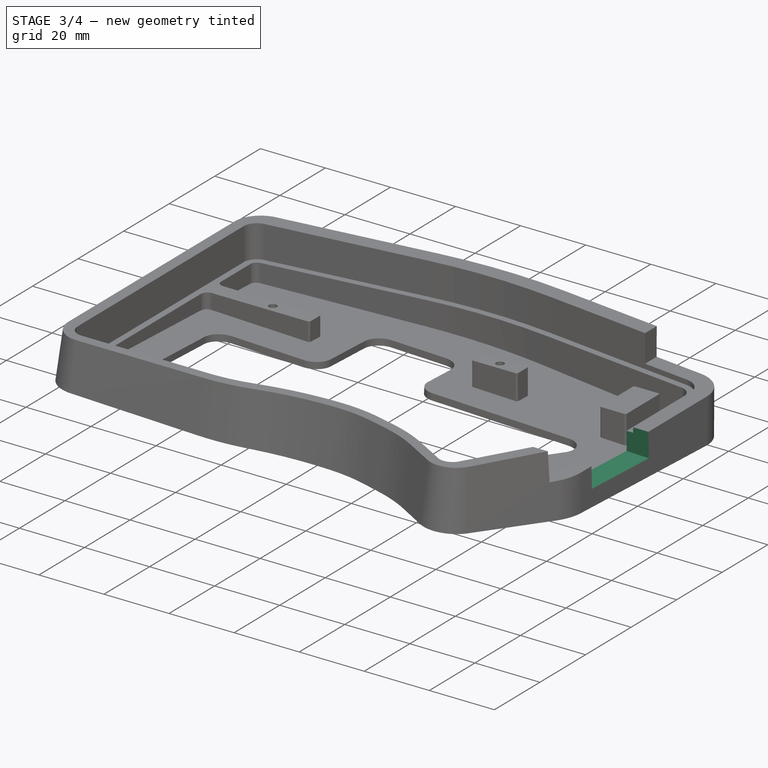
[diagram: stage 3 of 4 — iso view after this stage's code; geometry added in this stage tinted green]
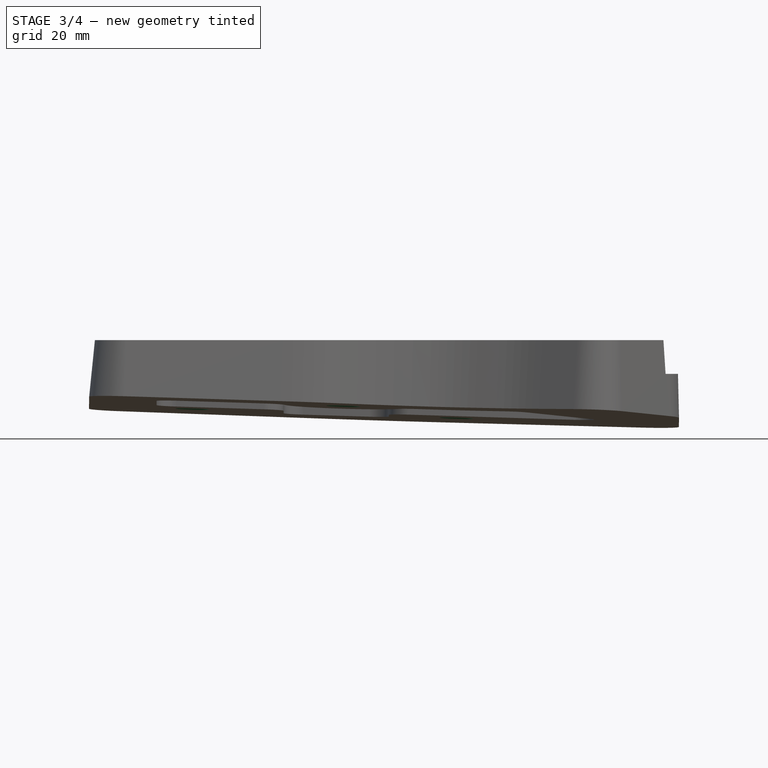
[diagram: stage 3 of 4 — front view after this stage's code; geometry added in this stage tinted green]
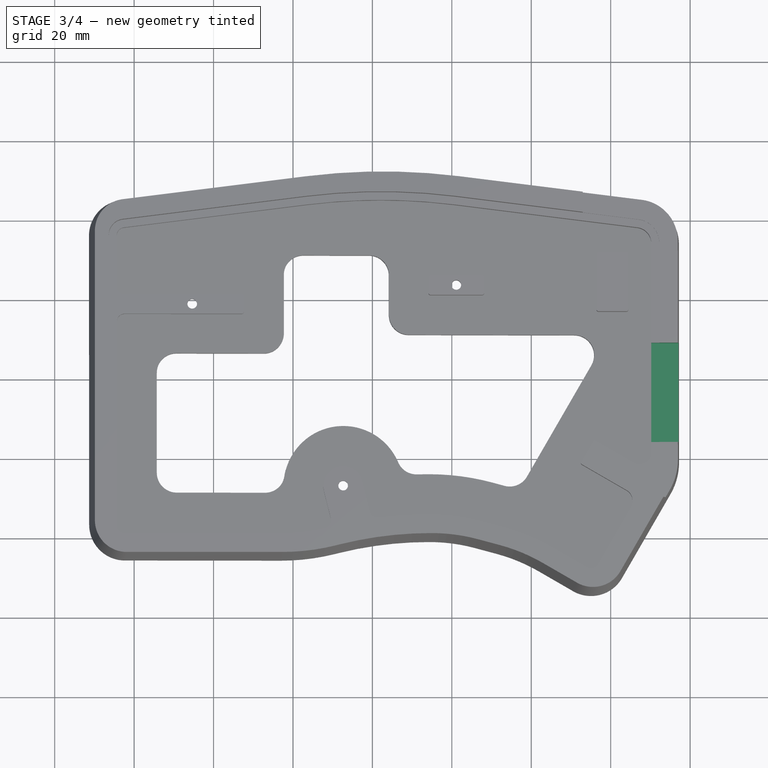
[diagram: stage 3 of 4 — top view after this stage's code; geometry added in this stage tinted green]
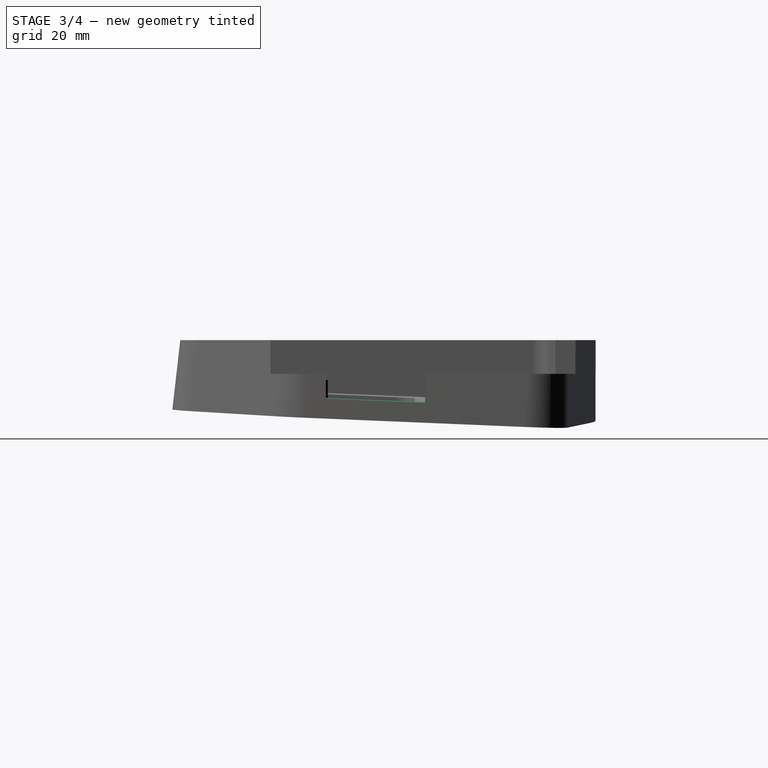
[diagram: stage 3 of 4 — right view after this stage's code; geometry added in this stage tinted green]
FEATURE [Sketcher::SketchObject] Sketch006
  ExternalGeometry = -> [Sketch003]
  FullyConstrained = true
  MapMode = 5
  Placement = pos=(0,0,8) rot=(0,0,1;0rad)
  Support = -> [Pocket]
  sketch-geometry (3):
    g0: Circle CenterX=-45.3729 CenterY=18.9393 CenterZ=0 NormalX=0 NormalY=0 NormalZ=1 AngleXU=0 Radius=1.1
    g1: Circle CenterX=21.1271 CenterY=23.689 CenterZ=0 NormalX=0 NormalY=0 NormalZ=1 AngleXU=0 Radius=1.1
    g2: Circle CenterX=-7.37291 CenterY=-26.8483 CenterZ=0 NormalX=0 NormalY=0 NormalZ=1 AngleXU=0 Radius=1.1
  constraints (6):
    c: Coincident(g0,g-4)
    c: Coincident(g1,g-3)
    c: Coincident(g2,g-5)
    c: Equal(g2,g0)
    c: Equal(g0,g1)
    c: Diameter(g0) = 2.2
FEATURE [PartDesign::Hole] Hole
  BaseFeature = -> Pocket003
  CustomThreadClearance = 0
  Depth = 25
  DepthType = 0
  Diameter = 2.42
  DrillForDepth = false
  DrillPoint = 1
  DrillPointAngle = 118
  HoleCutCountersinkAngle = 90
  HoleCutCustomValues = false
  HoleCutDepth = 0
  HoleCutDiameter = 6.1
  HoleCutType = 0
  ModelThread = false
  Profile = -> Sketch006
  Tapered = false
  TaperedAngle = 90
  ThreadClass = 0
  ThreadDepth = 25
  ThreadDepthType = 0
  ThreadDirection = 0
  ThreadFit = 0
  ThreadSize = 7
  ThreadType = 1
  Threaded = false
  UseCustomThreadClearance = false
FEATURE [PartDesign::Chamfer] Chamfer
  Angle = 45
  Base = -> Hole [Edge21,Edge45,Edge22]
  BaseFeature = -> Hole
  ChamferType = 0
  FlipDirection = false
  Size = 3
  Size2 = 1
  SupportTransform = false
  UseAllEdges = false
FEATURE [Sketcher::SketchObject] Sketch008
  ExternalGeometry = -> [AdditiveLoft]
  FullyConstrained = true
  MapMode = 5
  Placement = pos=(0,0,18) rot=(0,0,1;0rad)
  Support = -> [AdditiveLoft]
  sketch-geometry (4):
    g0: LineSegment StartX=97.1975 StartY=9.12706 StartZ=0 EndX=57.1975 EndY=9.12706 EndZ=0
    g1: LineSegment StartX=57.1975 StartY=9.12706 StartZ=0 EndX=57.1975 EndY=-15.8729 EndZ=0
    g2: LineSegment StartX=57.1975 StartY=-15.8729 StartZ=0 EndX=97.1975 EndY=-15.8729 EndZ=0
    g3: LineSegment StartX=97.1975 StartY=-15.8729 StartZ=0 EndX=97.1975 EndY=9.12706 EndZ=0
  constraints (12):
    c: Coincident(g0,g1)
    c: Coincident(g1,g2)
    c: Coincident(g2,g3)
    c: Coincident(g3,g0)
    c: Horizontal(g0)
    c: Horizontal(g2)
    c: Vertical(g1)
    c: Vertical(g3)
    c: Distance(g-3,g0) = 25
    c: Distance(g3) = 25
    c: Distance(g0) = 40
    c: Distance(g1,g-3) = 20
FEATURE [PartDesign::Pocket] Pocket004
  BaseFeature = -> Chamfer
  Direction = (0,0,-1)
  Length = 0
  Length2 = 5
  Offset = -3
  Profile = -> Sketch008
  ReferenceAxis = -> Sketch008 [N_Axis]
  Type = 3
  UpToFace = -> Chamfer [Face52]
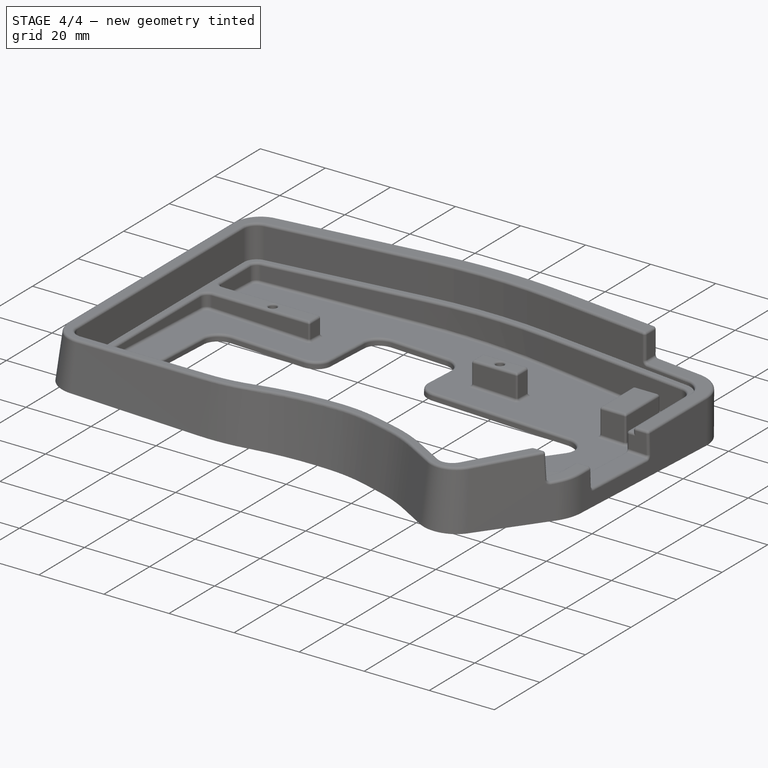
[diagram: stage 4 of 4 — iso view after this stage's code; geometry added in this stage tinted green]
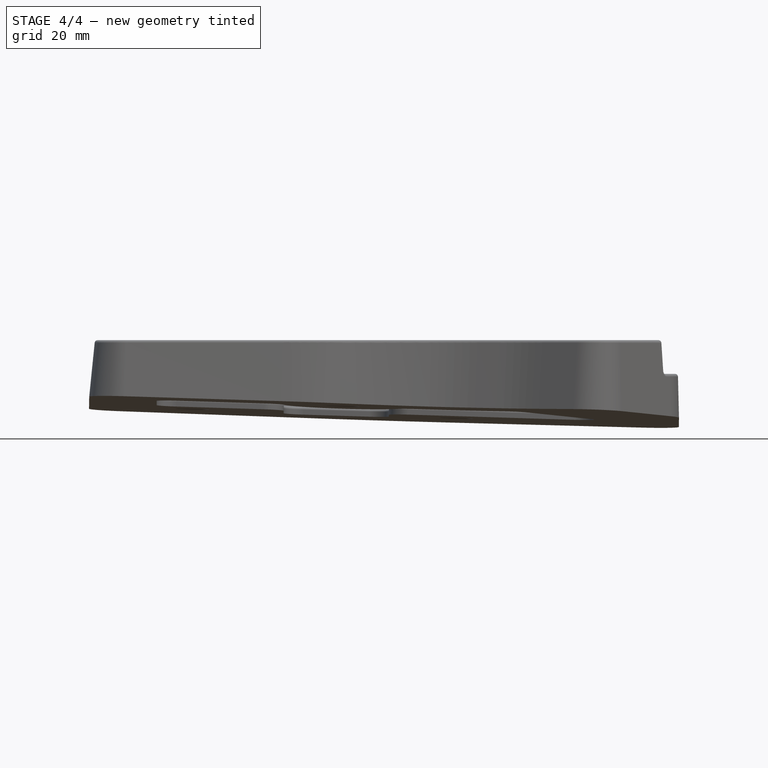
[diagram: stage 4 of 4 — front view after this stage's code; geometry added in this stage tinted green]
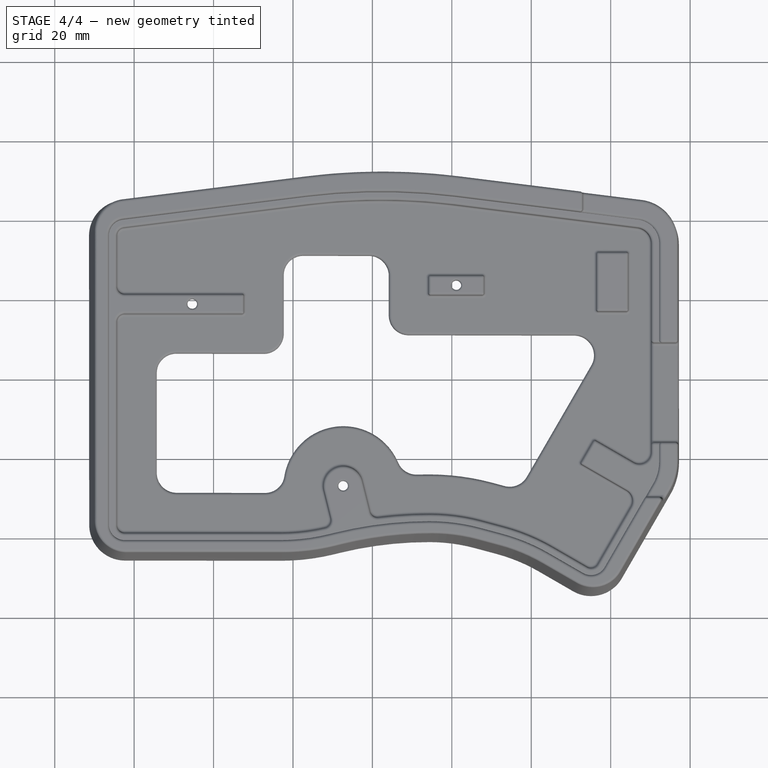
[diagram: stage 4 of 4 — top view after this stage's code; geometry added in this stage tinted green]
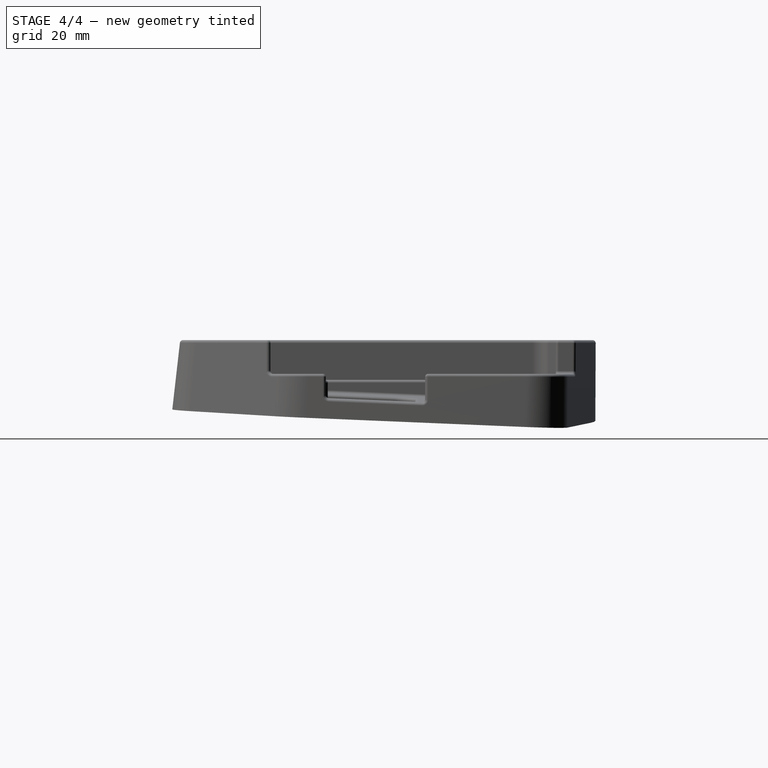
[diagram: stage 4 of 4 — right view after this stage's code; geometry added in this stage tinted green]
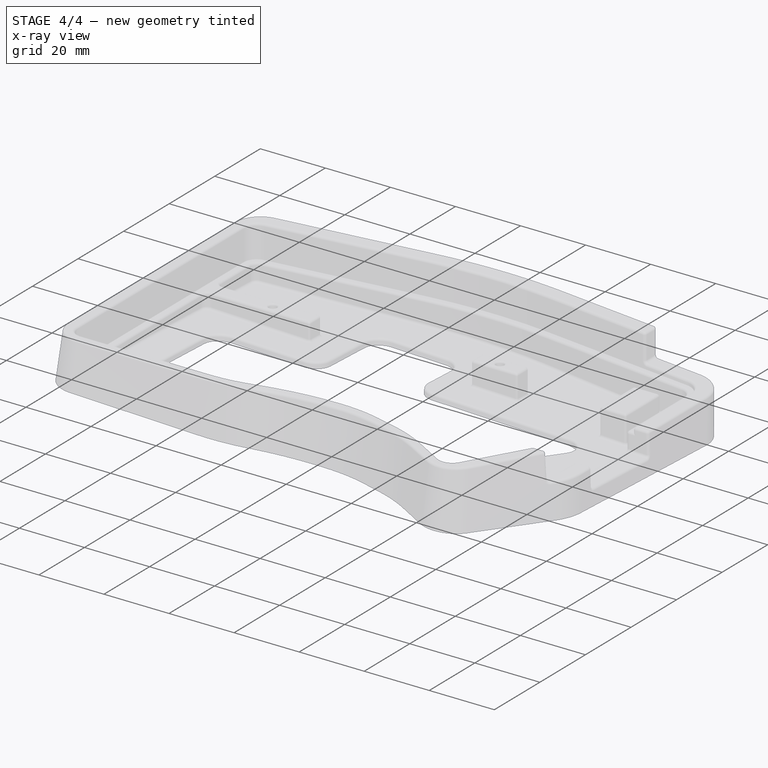
[diagram: stage 4 of 4 — x-ray composite at the iso view; earlier geometry ghosted, this stage's added geometry solid]
FEATURE [PartDesign::Fillet] Fillet
  Base = -> Pocket004 [Face48,Face54,Face55,Face50,Face49,Face51,Face53,Face52,Edge325,Face56,Face136,Edge251]
  BaseFeature = -> Pocket004
  Radius = 0.75
  SupportTransform = false
  UseAllEdges = false
FEATURE [PartDesign::Fillet] Fillet001
  Base = -> Fillet [Edge244,Edge323,Edge325]
  BaseFeature = -> Fillet
  Radius = 0.5
  SupportTransform = false
  UseAllEdges = false
FEATURE [PartDesign::Body] Body
  Group = -> [Sketch,Sketch001,AdditiveLoft,Sketch002,Pocket,Sketch003,Pocket001,Sketch004,Pocket002,Sketch005,Pocket003,Sketch006,Hole,Chamfer,Sketch008,Pocket004,Fillet,Fillet001]
  Origin = -> Origin
  Placement = pos=(0,0,0) rot=(0.8,-0.6,0;0.05236rad)
  Tip = -> Fillet001
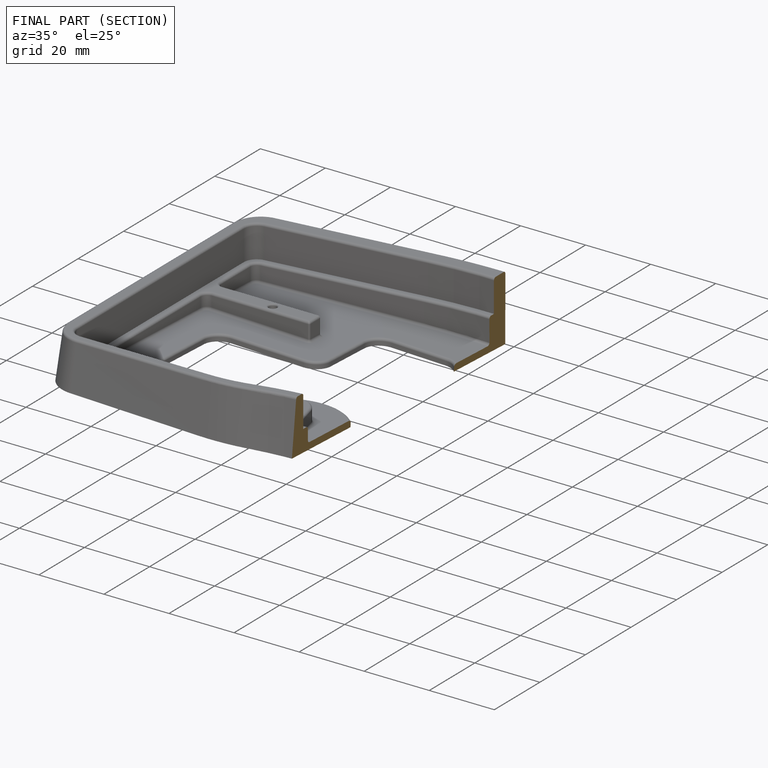
[diagram: finished part — half-section view (interior)]
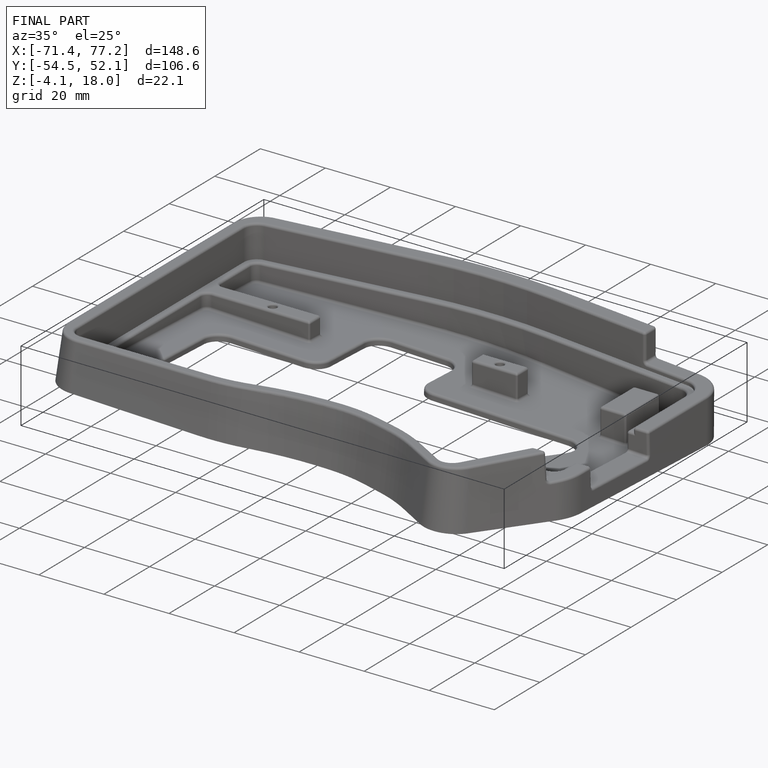
[diagram: finished part — iso view with bounding-box wireframe]
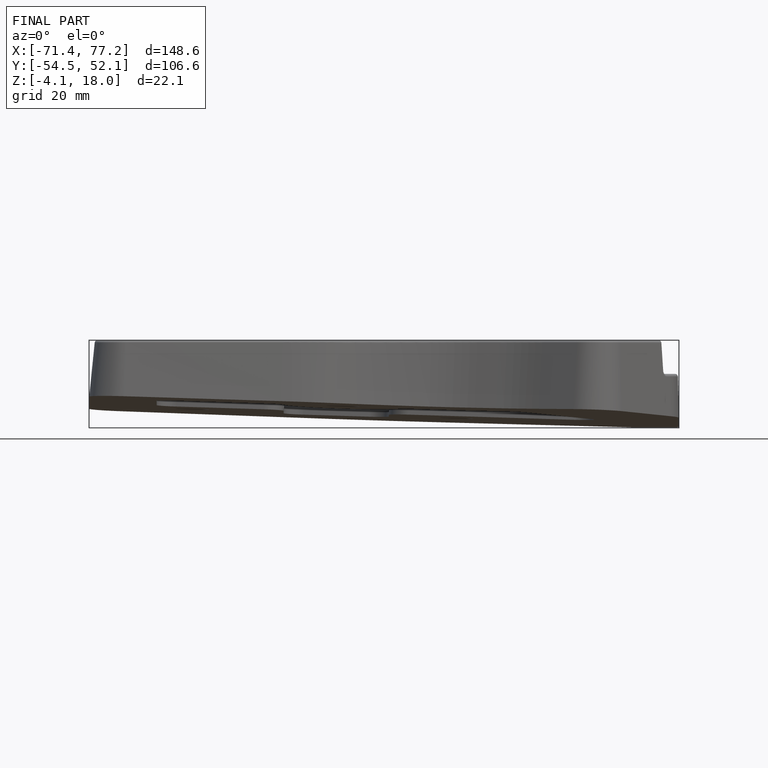
[diagram: finished part — front view with bounding-box wireframe]
